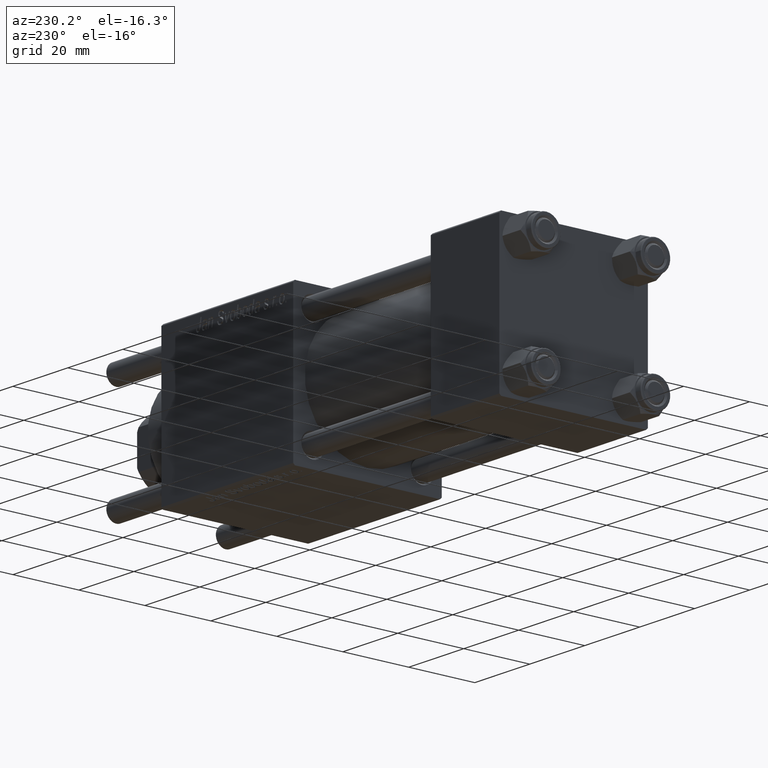
[diagram: clean part render]
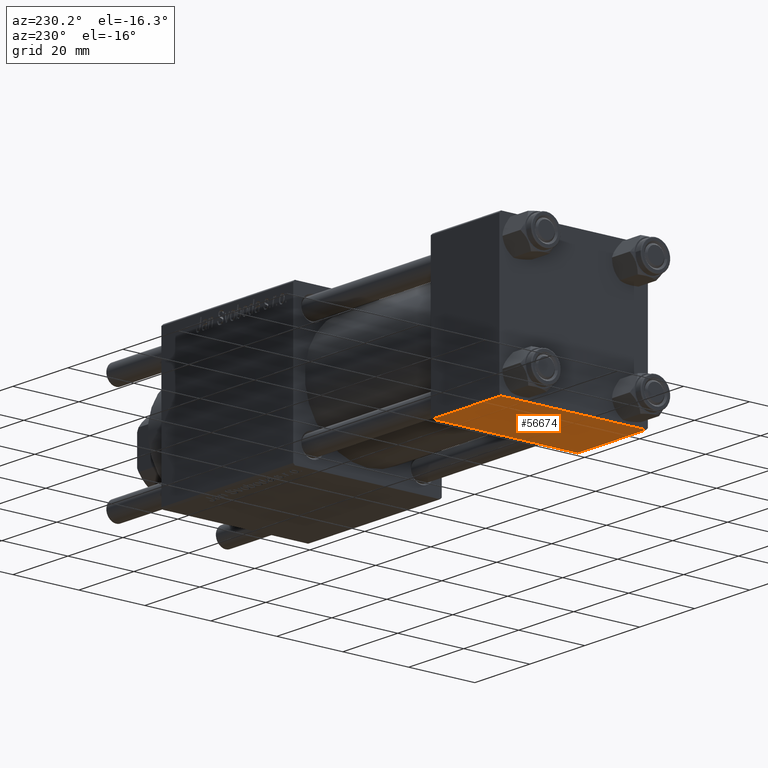
[diagram: same view with one face highlighted and labeled with its STEP entity id]
A machine part, auxiliary view. The second image highlights one B-rep face of the part: STEP entity #56674.
In plain terms, the highlighted planar face has unit normal (0, 0, -1).
Its self-contained STEP definition (entity closure, byte-faithful):
#556 = VERTEX_POINT ( 'NONE', #20072 ) ;
#3378 = LINE ( 'NONE', #7408, #36559 ) ;
#4430 = DIRECTION ( 'NONE',  ( 0.000000000000000000, 1.000000000000000000, 2.312964634635742957E-16 ) ) ;
#7408 = CARTESIAN_POINT ( 'NONE',  ( 0.000000000000000000, 22.50000000000000000, -22.49999999999999645 ) ) ;
#12547 = VERTEX_POINT ( 'NONE', #18575 ) ;
#12761 = VECTOR ( 'NONE', #51839, 1000.000000000000000 ) ;
#14708 = EDGE_CURVE ( 'NONE', #41662, #18283, #26249, .T. ) ;
#15242 = CARTESIAN_POINT ( 'NONE',  ( 25.00000000000000000, -21.99999999999997158, -22.50000000000000711 ) ) ;
#17563 = ORIENTED_EDGE ( 'NONE', *, *, #44274, .T. ) ;
#18283 = VERTEX_POINT ( 'NONE', #15242 ) ;
#18575 = CARTESIAN_POINT ( 'NONE',  ( 0.000000000000000000, 21.99999999999999289, -22.49999999999999645 ) ) ;
#20072 = CARTESIAN_POINT ( 'NONE',  ( 0.000000000000000000, -21.99999999999997158, -22.50000000000000711 ) ) ;
#25672 = CARTESIAN_POINT ( 'NONE',  ( 25.00000000000000000, 21.99999999999999289, -22.49999999999999645 ) ) ;
#26249 = LINE ( 'NONE', #30316, #35790 ) ;
#27830 = DIRECTION ( 'NONE',  ( -1.000000000000000000, 0.000000000000000000, 0.000000000000000000 ) ) ;
#30316 = CARTESIAN_POINT ( 'NONE',  ( 25.00000000000000000, 22.50000000000000000, -22.49999999999999645 ) ) ;
#31963 = VECTOR ( 'NONE', #27830, 1000.000000000000000 ) ;
#32734 = LINE ( 'NONE', #41080, #31963 ) ;
#34343 = LINE ( 'NONE', #25672, #12761 ) ;
#34440 = ORIENTED_EDGE ( 'NONE', *, *, #35317, .T. ) ;
#35317 = EDGE_CURVE ( 'NONE', #18283, #556, #32734, .T. ) ;
#35505 = EDGE_CURVE ( 'NONE', #12547, #556, #3378, .T. ) ;
#35790 = VECTOR ( 'NONE', #43824, 1000.000000000000000 ) ;
#36559 = VECTOR ( 'NONE', #48153, 1000.000000000000000 ) ;
#36685 = CARTESIAN_POINT ( 'NONE',  ( 25.00000000000000000, 21.99999999999999289, -22.49999999999999645 ) ) ;
#39535 = PLANE ( 'NONE',  #44393 ) ;
#41080 = CARTESIAN_POINT ( 'NONE',  ( 0.000000000000000000, -21.99999999999998579, -22.50000000000000711 ) ) ;
#41596 = ORIENTED_EDGE ( 'NONE', *, *, #35505, .F. ) ;
#41662 = VERTEX_POINT ( 'NONE', #36685 ) ;
#43436 = ORIENTED_EDGE ( 'NONE', *, *, #14708, .T. ) ;
#43824 = DIRECTION ( 'NONE',  ( 0.000000000000000000, -1.000000000000000000, -2.312964634635742957E-16 ) ) ;
#43837 = FACE_OUTER_BOUND ( 'NONE', #53242, .T. ) ;
#44274 = EDGE_CURVE ( 'NONE', #12547, #41662, #34343, .T. ) ;
#44393 = AXIS2_PLACEMENT_3D ( 'NONE', #56741, #48723, #4430 ) ;
#48153 = DIRECTION ( 'NONE',  ( 0.000000000000000000, -1.000000000000000000, -2.312964634635742957E-16 ) ) ;
#48723 = DIRECTION ( 'NONE',  ( 0.000000000000000000, 2.312964634635742957E-16, -1.000000000000000000 ) ) ;
#51839 = DIRECTION ( 'NONE',  ( 1.000000000000000000, 0.000000000000000000, 0.000000000000000000 ) ) ;
#53242 = EDGE_LOOP ( 'NONE', ( #41596, #17563, #43436, #34440 ) ) ;
#56674 = ADVANCED_FACE ( 'NONE', ( #43837 ), #39535, .T. ) ;
#56741 = CARTESIAN_POINT ( 'NONE',  ( 25.00000000000000000, 22.50000000000000000, -22.49999999999999645 ) ) ;